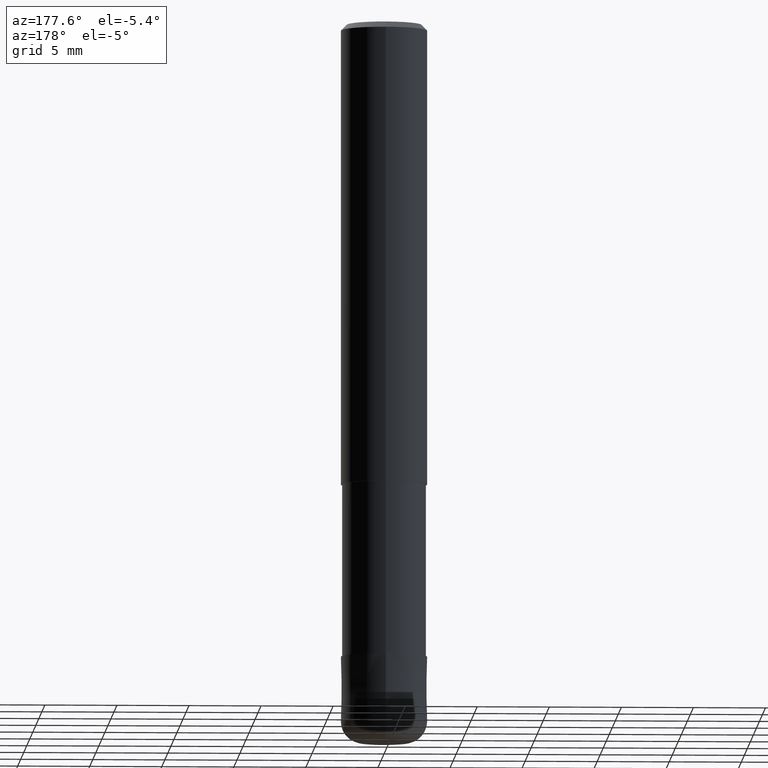
[diagram: clean part render]
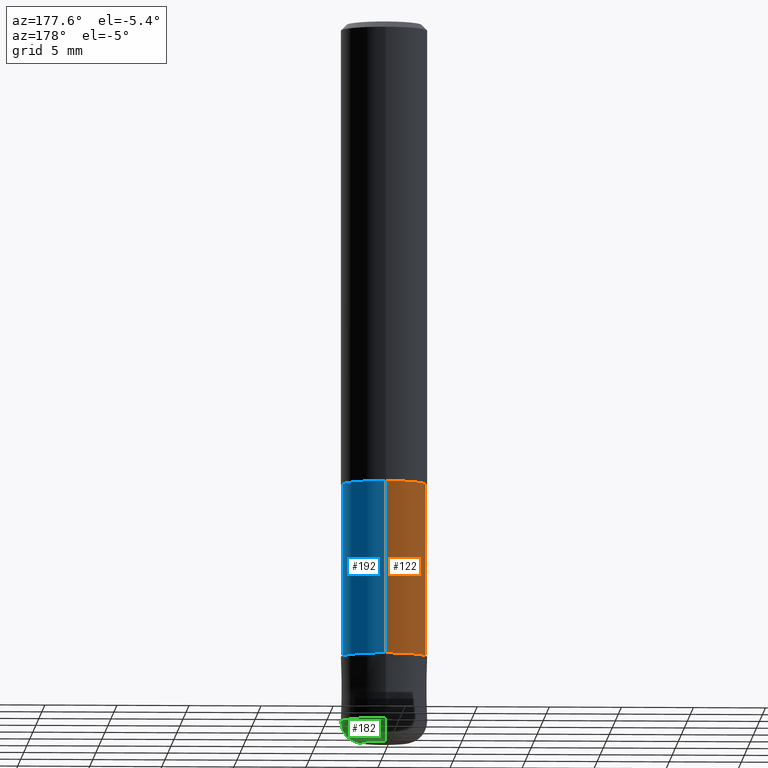
[diagram: same view with three faces highlighted in distinct colors, each labeled with its STEP entity id]
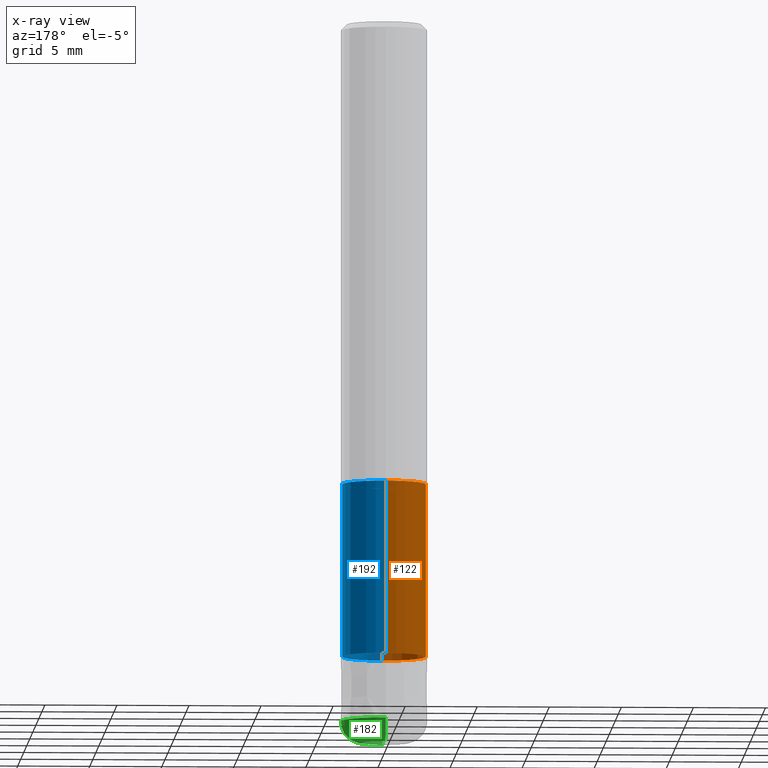
[diagram: x-ray of the same camera — body ghosted, the three highlighted faces saturated]
A machine part, auxiliary view with three faces highlighted in distinct colors.
The next image is the same camera in x-ray (body ghosted, the three faces saturated) — at least one of them is partly hidden behind the body in this view.
Their STEP definitions:

[orange] entity #122 — the highlighted cylindrical surface (partial cylindrical patch) has radius 2.9099 mm, axis along (-0, -0, 1).
#98=EDGE_CURVE('',#128,#188,#236,.T.);
#122=ADVANCED_FACE('',(#265),#266,.T.);
#126=VERTEX_POINT('',#270);
#128=VERTEX_POINT('',#272);
#154=EDGE_CURVE('',#184,#128,#298,.T.);
#166=EDGE_CURVE('',#126,#188,#312,.T.);
#184=VERTEX_POINT('',#333);
#188=VERTEX_POINT('',#338);
#208=EDGE_CURVE('',#126,#184,#361,.T.);
#236=LINE('',#383,#384);
#265=FACE_OUTER_BOUND('',#419,.T.);
#266=CYLINDRICAL_SURFACE('',#420,2.90995);
#270=CARTESIAN_POINT('',(3.56354325930543E-016,-2.90995,-44.0));
#272=CARTESIAN_POINT('',(0.0,2.90995,-32.0));
#298=CIRCLE('',#458,2.90995);
#312=CIRCLE('',#474,2.90995);
#333=CARTESIAN_POINT('',(3.56354325930543E-016,-2.90995,-32.0));
#338=CARTESIAN_POINT('',(0.0,2.90995,-44.0));
#361=LINE('',#537,#538);
#383=CARTESIAN_POINT('',(-3.56354325930543E-016,2.90995,-38.0));
#384=VECTOR('',#551,1.0);
#419=EDGE_LOOP('',(#601,#602,#603,#604));
#420=AXIS2_PLACEMENT_3D('',#605,#606,#607);
#458=AXIS2_PLACEMENT_3D('',#622,#623,#624);
#474=AXIS2_PLACEMENT_3D('',#644,#645,#646);
#537=CARTESIAN_POINT('',(3.56354325930543E-016,-2.90995,-38.0));
#538=VECTOR('',#715,1.0);
#551=DIRECTION('',(0.0,0.0,-1.0));
#601=ORIENTED_EDGE('',*,*,#98,.T.);
#602=ORIENTED_EDGE('',*,*,#166,.F.);
#603=ORIENTED_EDGE('',*,*,#208,.T.);
#604=ORIENTED_EDGE('',*,*,#154,.T.);
#605=CARTESIAN_POINT('',(0.0,0.0,-38.0));
#606=DIRECTION('',(-0.0,-0.0,1.0));
#607=DIRECTION('',(0.0,1.0,0.0));
#622=CARTESIAN_POINT('',(0.0,0.0,-32.0));
#623=DIRECTION('',(0.0,0.0,-1.0));
#624=DIRECTION('',(0.0,1.0,0.0));
#644=CARTESIAN_POINT('',(0.0,0.0,-44.0));
#645=DIRECTION('',(0.0,0.0,-1.0));
#646=DIRECTION('',(0.0,1.0,0.0));
#715=DIRECTION('',(-0.0,-0.0,1.0));

[blue] entity #192 — the highlighted cylindrical surface (partial cylindrical patch) has radius 2.9099 mm, axis along (-0, -0, 1).
#98=EDGE_CURVE('',#128,#188,#236,.T.);
#108=EDGE_CURVE('',#128,#184,#247,.T.);
#126=VERTEX_POINT('',#270);
#128=VERTEX_POINT('',#272);
#174=EDGE_CURVE('',#188,#126,#322,.T.);
#184=VERTEX_POINT('',#333);
#188=VERTEX_POINT('',#338);
#192=ADVANCED_FACE('',(#343),#344,.T.);
#208=EDGE_CURVE('',#126,#184,#361,.T.);
#236=LINE('',#383,#384);
#247=CIRCLE('',#398,2.90995);
#270=CARTESIAN_POINT('',(3.56354325930543E-016,-2.90995,-44.0));
#272=CARTESIAN_POINT('',(0.0,2.90995,-32.0));
#322=CIRCLE('',#487,2.90995);
#333=CARTESIAN_POINT('',(3.56354325930543E-016,-2.90995,-32.0));
#338=CARTESIAN_POINT('',(0.0,2.90995,-44.0));
#343=FACE_OUTER_BOUND('',#511,.T.);
#344=CYLINDRICAL_SURFACE('',#512,2.90995);
#361=LINE('',#537,#538);
#383=CARTESIAN_POINT('',(-3.56354325930543E-016,2.90995,-38.0));
#384=VECTOR('',#551,1.0);
#398=AXIS2_PLACEMENT_3D('',#565,#566,#567);
#487=AXIS2_PLACEMENT_3D('',#661,#662,#663);
#511=EDGE_LOOP('',(#689,#690,#691,#692));
#512=AXIS2_PLACEMENT_3D('',#693,#694,#695);
#537=CARTESIAN_POINT('',(3.56354325930543E-016,-2.90995,-38.0));
#538=VECTOR('',#715,1.0);
#551=DIRECTION('',(0.0,0.0,-1.0));
#565=CARTESIAN_POINT('',(0.0,0.0,-32.0));
#566=DIRECTION('',(0.0,0.0,-1.0));
#567=DIRECTION('',(0.0,1.0,0.0));
#661=CARTESIAN_POINT('',(0.0,0.0,-44.0));
#662=DIRECTION('',(0.0,0.0,-1.0));
#663=DIRECTION('',(0.0,1.0,0.0));
#689=ORIENTED_EDGE('',*,*,#98,.F.);
#690=ORIENTED_EDGE('',*,*,#108,.T.);
#691=ORIENTED_EDGE('',*,*,#208,.F.);
#692=ORIENTED_EDGE('',*,*,#174,.F.);
#693=CARTESIAN_POINT('',(0.0,0.0,-38.0));
#694=DIRECTION('',(-0.0,-0.0,1.0));
#695=DIRECTION('',(0.0,1.0,0.0));
#715=DIRECTION('',(-0.0,-0.0,1.0));

[green] entity #182 — the highlighted toroidal blend (fillet) surface has major radius 1.5 mm and minor (blend) radius 1.5 mm.
#124=VERTEX_POINT('',#268);
#130=VERTEX_POINT('',#274);
#146=EDGE_CURVE('',#164,#130,#290,.T.);
#164=VERTEX_POINT('',#310);
#168=EDGE_CURVE('',#206,#124,#314,.T.);
#182=ADVANCED_FACE('',(#330),#331,.T.);
#202=EDGE_CURVE('',#124,#130,#355,.T.);
#204=EDGE_CURVE('',#164,#206,#357,.T.);
#206=VERTEX_POINT('',#359);
#268=CARTESIAN_POINT('',(3.67381906146713E-016,-3.0,-48.5));
#274=CARTESIAN_POINT('',(1.83690953073357E-016,-1.5,-50.0));
#290=CIRCLE('',#445,1.5);
#310=CARTESIAN_POINT('',(0.0,1.5,-50.0));
#314=CIRCLE('',#477,3.0);
#330=FACE_OUTER_BOUND('',#498,.T.);
#331=TOROIDAL_SURFACE('',#499,1.5,1.5);
#355=CIRCLE('',#529,1.5);
#357=CIRCLE('',#532,1.5);
#359=CARTESIAN_POINT('',(0.0,3.0,-48.5));
#445=AXIS2_PLACEMENT_3D('',#612,#613,#614);
#477=AXIS2_PLACEMENT_3D('',#647,#648,#649);
#498=EDGE_LOOP('',(#669,#670,#671,#672));
#499=AXIS2_PLACEMENT_3D('',#673,#674,#675);
#529=AXIS2_PLACEMENT_3D('',#709,#710,#711);
#532=AXIS2_PLACEMENT_3D('',#712,#713,#714);
#612=CARTESIAN_POINT('',(0.0,0.0,-50.0));
#613=DIRECTION('',(0.0,0.0,-1.0));
#614=DIRECTION('',(0.0,1.0,0.0));
#647=CARTESIAN_POINT('',(0.0,0.0,-48.5));
#648=DIRECTION('',(0.0,0.0,-1.0));
#649=DIRECTION('',(0.0,1.0,0.0));
#669=ORIENTED_EDGE('',*,*,#202,.T.);
#670=ORIENTED_EDGE('',*,*,#146,.F.);
#671=ORIENTED_EDGE('',*,*,#204,.T.);
#672=ORIENTED_EDGE('',*,*,#168,.T.);
#673=CARTESIAN_POINT('',(0.0,0.0,-48.5));
#674=DIRECTION('',(0.0,0.0,-1.0));
#675=DIRECTION('',(0.0,-1.0,0.0));
#709=CARTESIAN_POINT('',(1.83690953073356E-016,-1.5,-48.5));
#710=DIRECTION('',(1.0,1.22460635382238E-016,0.0));
#711=DIRECTION('',(1.22460635382238E-016,-1.0,-0.0));
#712=CARTESIAN_POINT('',(-1.83690953073356E-016,1.5,-48.5));
#713=DIRECTION('',(1.0,1.22460635382238E-016,0.0));
#714=DIRECTION('',(-1.22460635382238E-016,1.0,0.0));